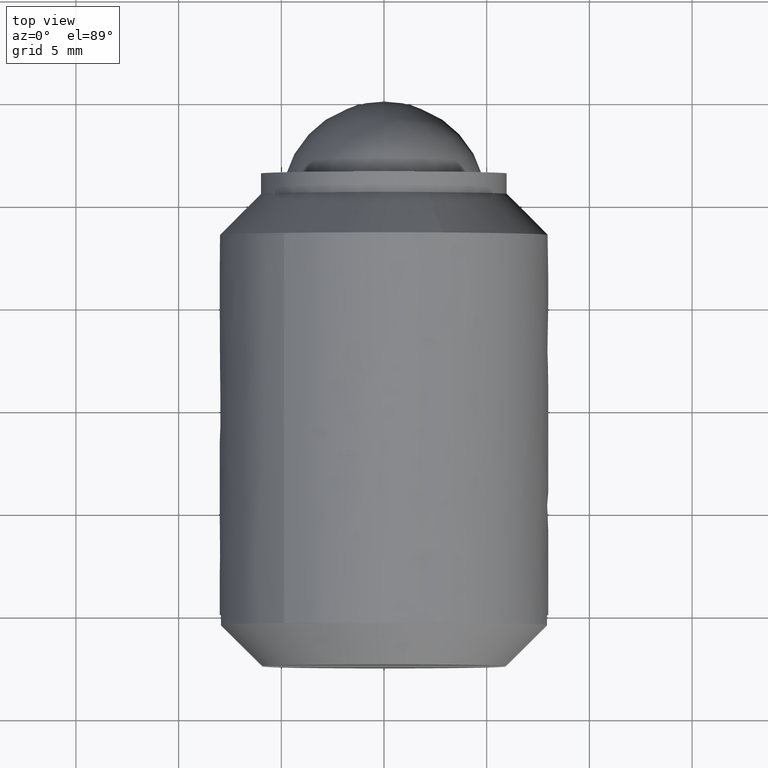
[diagram: clean part render]
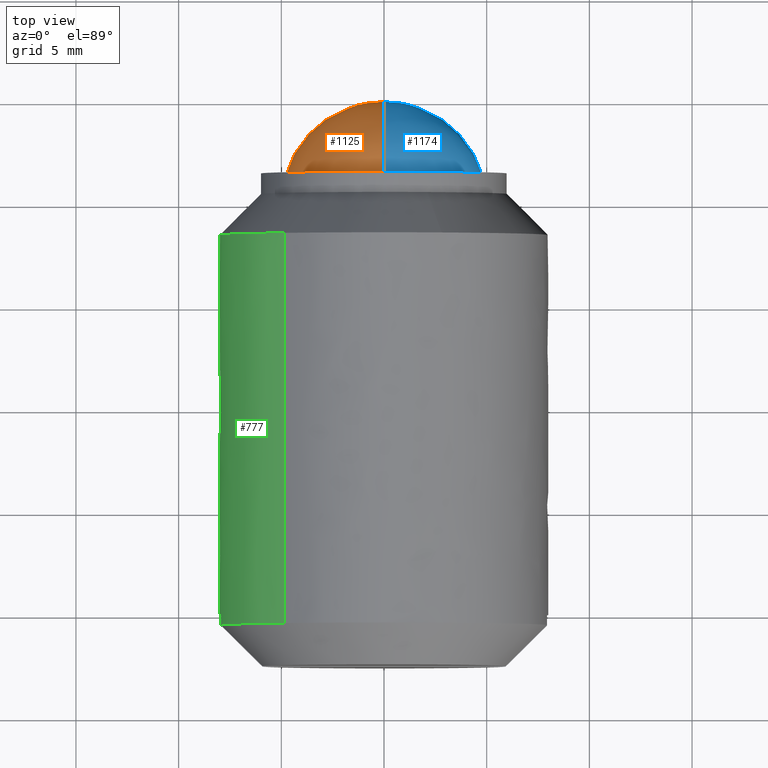
[diagram: same view with three faces highlighted in distinct colors, each labeled with its STEP entity id]
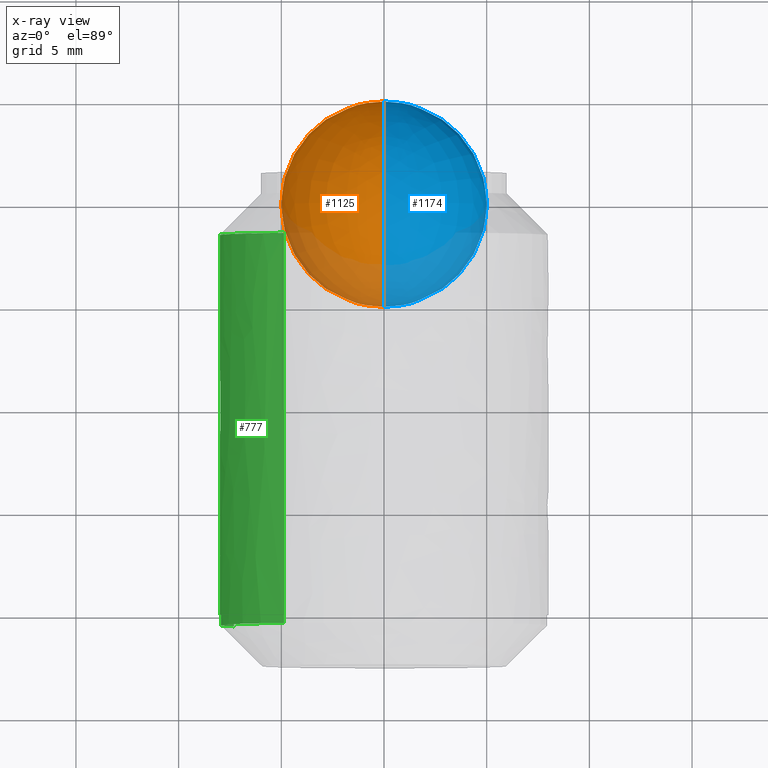
[diagram: x-ray of the same camera — body ghosted, the three highlighted faces saturated]
A machine part, top view with three faces highlighted in distinct colors.
The next image is the same camera in x-ray (body ghosted, the three faces saturated) — at least one of them is partly hidden behind the body in this view.
Their STEP definitions:

[orange] entity #1125 — the highlighted face is a freeform B-spline surface patch.
#1045=CARTESIAN_POINT('',(1.875000000000000,-8.277527650531722,3.277527650531725));
#1046=CARTESIAN_POINT('',(1.226415094339623,-7.968326928783450,3.957769238377932));
#1047=CARTESIAN_POINT('',(0.238095238095238,-6.248581962107323,4.994327848429295));
#1048=CARTESIAN_POINT('',(0.238095238095238,-3.751418037892677,4.994327848429295));
#1049=CARTESIAN_POINT('',(1.226415094339623,-2.031673071216554,3.957769238377932));
#1050=CARTESIAN_POINT('',(1.875000000000000,-1.722472349468278,3.277527650531725));
#1051=CARTESIAN_POINT('',(1.226415094339623,-8.957769238377928,2.968326928783448));
#1052=CARTESIAN_POINT('',(0.238095238095238,-8.745745886321966,3.745745886321970));
#1053=CARTESIAN_POINT('',(-1.451612903225807,-6.691627174467986,5.074881523403960));
#1054=CARTESIAN_POINT('',(-1.451612903225807,-3.308372825532014,5.074881523403960));
#1055=CARTESIAN_POINT('',(0.238095238095238,-1.254254113678031,3.745745886321970));
#1056=CARTESIAN_POINT('',(1.226415094339623,-1.042230761622072,2.968326928783448));
#1057=CARTESIAN_POINT('',(0.238095238095238,-9.994327848429290,1.248581962107325));
#1058=CARTESIAN_POINT('',(-1.451612903225807,-10.074881523403961,1.691627174467988));
#1059=CARTESIAN_POINT('',(-4.999999999999998,-7.622022120425378,2.622022120425380));
#1060=CARTESIAN_POINT('',(-4.999999999999998,-2.377977879574622,2.622022120425380));
#1061=CARTESIAN_POINT('',(-1.451612903225807,0.074881523403958,1.691627174467988));
#1062=CARTESIAN_POINT('',(0.238095238095238,-0.005672151570709,1.248581962107325));
#1063=CARTESIAN_POINT('',(0.238095238095238,-9.994327848429290,-1.248581962107321));
#1064=CARTESIAN_POINT('',(-1.451612903225807,-10.074881523403961,-1.691627174467985));
#1065=CARTESIAN_POINT('',(-4.999999999999998,-7.622022120425378,-2.622022120425377));
#1066=CARTESIAN_POINT('',(-4.999999999999998,-2.377977879574622,-2.622022120425377));
#1067=CARTESIAN_POINT('',(-1.451612903225807,0.074881523403958,-1.691627174467985));
#1068=CARTESIAN_POINT('',(0.238095238095238,-0.005672151570709,-1.248581962107321));
#1069=CARTESIAN_POINT('',(1.226415094339623,-8.957769238377928,-2.968326928783446));
#1070=CARTESIAN_POINT('',(0.238095238095238,-8.745745886321966,-3.745745886321967));
#1071=CARTESIAN_POINT('',(-1.451612903225807,-6.691627174467986,-5.074881523403956));
#1072=CARTESIAN_POINT('',(-1.451612903225807,-3.308372825532014,-5.074881523403956));
#1073=CARTESIAN_POINT('',(0.238095238095238,-1.254254113678031,-3.745745886321967));
#1074=CARTESIAN_POINT('',(1.226415094339623,-1.042230761622072,-2.968326928783446));
#1075=CARTESIAN_POINT('',(1.875000000000000,-8.277527650531722,-3.277527650531722));
#1076=CARTESIAN_POINT('',(1.226415094339623,-7.968326928783450,-3.957769238377928));
#1077=CARTESIAN_POINT('',(0.238095238095238,-6.248581962107323,-4.994327848429291));
#1078=CARTESIAN_POINT('',(0.238095238095238,-3.751418037892677,-4.994327848429291));
#1079=CARTESIAN_POINT('',(1.226415094339623,-2.031673071216554,-3.957769238377928));
#1080=CARTESIAN_POINT('',(1.875000000000000,-1.722472349468278,-3.277527650531722));
#1088=(BOUNDED_SURFACE()B_SPLINE_SURFACE(2,2,((#1045,#1051,#1057,#1063,#1069,#1075),(#1046,#1052,#1058,#1064,#1070,#1076),(#1047,#1053,#1059,#1065,#1071,#1077),(#1048,#1054,#1060,#1066,#1072,#1078),(#1049,#1055,#1061,#1067,#1073,#1079),(#1050,#1056,#1062,#1068,#1074,#1080)),.UNSPECIFIED.,.F.,.F.,.U.)B_SPLINE_SURFACE_WITH_KNOTS((3,1,1,1,3),(3,1,1,1,3),(0.0,4.610148783165501,9.220297566331002,13.830446349496500,18.440595132662001),(0.0,4.610148783165501,9.220297566331002,13.830446349496500,18.440595132662001),.UNSPECIFIED.)GEOMETRIC_REPRESENTATION_ITEM()RATIONAL_B_SPLINE_SURFACE(((3.200000000000000,2.650000000000000,2.100000000000000,2.100000000000000,2.650000000000000,3.200000000000000),(2.650000000000000,2.100000000000000,1.550000000000000,1.550000000000000,2.100000000000000,2.650000000000000),(2.100000000000000,1.550000000000000,1.0,1.0,1.550000000000000,2.100000000000000),(2.100000000000000,1.550000000000000,1.0,1.0,1.550000000000000,2.100000000000000),(2.650000000000000,2.100000000000000,1.550000000000000,1.550000000000000,2.100000000000000,2.650000000000000),(3.200000000000000,2.650000000000000,2.100000000000000,2.100000000000000,2.650000000000000,3.200000000000000)))REPRESENTATION_ITEM('')SURFACE());
#1089=CARTESIAN_POINT('',(0.0,0.0,1.500143E-015));
#1090=VERTEX_POINT('',#1089);
#1091=CARTESIAN_POINT('',(0.0,-10.0,1.500143E-015));
#1092=VERTEX_POINT('',#1091);
#1093=CARTESIAN_POINT('',(0.0,0.0,1.500143E-015));
#1094=CARTESIAN_POINT('',(0.0,0.0,-4.999999999999997));
#1095=CARTESIAN_POINT('',(0.0,-5.0,-4.999999999999998));
#1096=CARTESIAN_POINT('',(0.0,-10.000000000000002,-4.999999999999997));
#1097=CARTESIAN_POINT('',(0.0,-10.0,1.500143E-015));
#1105=(BOUNDED_CURVE()B_SPLINE_CURVE(2,(#1093,#1094,#1095,#1096,#1097),.UNSPECIFIED.,.F.,.U.)B_SPLINE_CURVE_WITH_KNOTS((3,2,3),(0.0,0.500000000000000,1.0),.UNSPECIFIED.)CURVE()GEOMETRIC_REPRESENTATION_ITEM()RATIONAL_B_SPLINE_CURVE((1.0,0.707106781186548,1.0,0.707106781186548,1.0))REPRESENTATION_ITEM(''));
#1106=EDGE_CURVE('',#1090,#1092,#1105,.T.);
#1107=ORIENTED_EDGE('',*,*,#1106,.T.);
#1108=CARTESIAN_POINT('',(0.0,0.0,1.500143E-015));
#1109=CARTESIAN_POINT('',(0.0,0.0,5.000000000000002));
#1110=CARTESIAN_POINT('',(0.0,-5.0,5.000000000000002));
#1111=CARTESIAN_POINT('',(0.0,-10.000000000000002,5.000000000000002));
#1112=CARTESIAN_POINT('',(0.0,-10.0,1.500143E-015));
#1120=(BOUNDED_CURVE()B_SPLINE_CURVE(2,(#1108,#1109,#1110,#1111,#1112),.UNSPECIFIED.,.F.,.U.)B_SPLINE_CURVE_WITH_KNOTS((3,2,3),(0.0,0.500000000000000,1.0),.UNSPECIFIED.)CURVE()GEOMETRIC_REPRESENTATION_ITEM()RATIONAL_B_SPLINE_CURVE((1.0,0.707106781186548,1.0,0.707106781186548,1.0))REPRESENTATION_ITEM(''));
#1121=EDGE_CURVE('',#1090,#1092,#1120,.T.);
#1122=ORIENTED_EDGE('',*,*,#1121,.F.);
#1123=EDGE_LOOP('',(#1107,#1122));
#1124=FACE_OUTER_BOUND('',#1123,.T.);
#1125=ADVANCED_FACE('',(#1124),#1088,.T.);

[blue] entity #1174 — the highlighted face is a freeform B-spline surface patch.
#1089=CARTESIAN_POINT('',(0.0,0.0,1.500143E-015));
#1090=VERTEX_POINT('',#1089);
#1091=CARTESIAN_POINT('',(0.0,-10.0,1.500143E-015));
#1092=VERTEX_POINT('',#1091);
#1093=CARTESIAN_POINT('',(0.0,0.0,1.500143E-015));
#1094=CARTESIAN_POINT('',(0.0,0.0,-4.999999999999997));
#1095=CARTESIAN_POINT('',(0.0,-5.0,-4.999999999999998));
#1096=CARTESIAN_POINT('',(0.0,-10.000000000000002,-4.999999999999997));
#1097=CARTESIAN_POINT('',(0.0,-10.0,1.500143E-015));
#1105=(BOUNDED_CURVE()B_SPLINE_CURVE(2,(#1093,#1094,#1095,#1096,#1097),.UNSPECIFIED.,.F.,.U.)B_SPLINE_CURVE_WITH_KNOTS((3,2,3),(0.0,0.500000000000000,1.0),.UNSPECIFIED.)CURVE()GEOMETRIC_REPRESENTATION_ITEM()RATIONAL_B_SPLINE_CURVE((1.0,0.707106781186548,1.0,0.707106781186548,1.0))REPRESENTATION_ITEM(''));
#1106=EDGE_CURVE('',#1090,#1092,#1105,.T.);
#1108=CARTESIAN_POINT('',(0.0,0.0,1.500143E-015));
#1109=CARTESIAN_POINT('',(0.0,0.0,5.000000000000002));
#1110=CARTESIAN_POINT('',(0.0,-5.0,5.000000000000002));
#1111=CARTESIAN_POINT('',(0.0,-10.000000000000002,5.000000000000002));
#1112=CARTESIAN_POINT('',(0.0,-10.0,1.500143E-015));
#1120=(BOUNDED_CURVE()B_SPLINE_CURVE(2,(#1108,#1109,#1110,#1111,#1112),.UNSPECIFIED.,.F.,.U.)B_SPLINE_CURVE_WITH_KNOTS((3,2,3),(0.0,0.500000000000000,1.0),.UNSPECIFIED.)CURVE()GEOMETRIC_REPRESENTATION_ITEM()RATIONAL_B_SPLINE_CURVE((1.0,0.707106781186548,1.0,0.707106781186548,1.0))REPRESENTATION_ITEM(''));
#1121=EDGE_CURVE('',#1090,#1092,#1120,.T.);
#1126=CARTESIAN_POINT('',(-1.875000000000000,-8.277527650531722,-3.277527650531722));
#1127=CARTESIAN_POINT('',(-1.226415094339623,-7.968326928783450,-3.957769238377928));
#1128=CARTESIAN_POINT('',(-0.238095238095238,-6.248581962107323,-4.994327848429291));
#1129=CARTESIAN_POINT('',(-0.238095238095238,-3.751418037892677,-4.994327848429291));
#1130=CARTESIAN_POINT('',(-1.226415094339623,-2.031673071216554,-3.957769238377928));
#1131=CARTESIAN_POINT('',(-1.875000000000000,-1.722472349468278,-3.277527650531722));
#1132=CARTESIAN_POINT('',(-1.226415094339623,-8.957769238377928,-2.968326928783446));
#1133=CARTESIAN_POINT('',(-0.238095238095238,-8.745745886321966,-3.745745886321967));
#1134=CARTESIAN_POINT('',(1.451612903225807,-6.691627174467986,-5.074881523403956));
#1135=CARTESIAN_POINT('',(1.451612903225807,-3.308372825532014,-5.074881523403956));
#1136=CARTESIAN_POINT('',(-0.238095238095238,-1.254254113678031,-3.745745886321967));
#1137=CARTESIAN_POINT('',(-1.226415094339623,-1.042230761622072,-2.968326928783446));
#1138=CARTESIAN_POINT('',(-0.238095238095238,-9.994327848429290,-1.248581962107321));
#1139=CARTESIAN_POINT('',(1.451612903225807,-10.074881523403961,-1.691627174467985));
#1140=CARTESIAN_POINT('',(4.999999999999998,-7.622022120425378,-2.622022120425377));
#1141=CARTESIAN_POINT('',(4.999999999999998,-2.377977879574622,-2.622022120425377));
#1142=CARTESIAN_POINT('',(1.451612903225807,0.074881523403958,-1.691627174467985));
#1143=CARTESIAN_POINT('',(-0.238095238095238,-0.005672151570709,-1.248581962107321));
#1144=CARTESIAN_POINT('',(-0.238095238095238,-9.994327848429290,1.248581962107325));
#1145=CARTESIAN_POINT('',(1.451612903225807,-10.074881523403961,1.691627174467988));
#1146=CARTESIAN_POINT('',(4.999999999999998,-7.622022120425378,2.622022120425380));
#1147=CARTESIAN_POINT('',(4.999999999999998,-2.377977879574622,2.622022120425380));
#1148=CARTESIAN_POINT('',(1.451612903225807,0.074881523403958,1.691627174467988));
#1149=CARTESIAN_POINT('',(-0.238095238095238,-0.005672151570709,1.248581962107325));
#1150=CARTESIAN_POINT('',(-1.226415094339623,-8.957769238377928,2.968326928783448));
#1151=CARTESIAN_POINT('',(-0.238095238095238,-8.745745886321966,3.745745886321970));
#1152=CARTESIAN_POINT('',(1.451612903225807,-6.691627174467986,5.074881523403960));
#1153=CARTESIAN_POINT('',(1.451612903225807,-3.308372825532014,5.074881523403960));
#1154=CARTESIAN_POINT('',(-0.238095238095238,-1.254254113678031,3.745745886321970));
#1155=CARTESIAN_POINT('',(-1.226415094339623,-1.042230761622072,2.968326928783448));
#1156=CARTESIAN_POINT('',(-1.875000000000000,-8.277527650531722,3.277527650531725));
#1157=CARTESIAN_POINT('',(-1.226415094339623,-7.968326928783450,3.957769238377932));
#1158=CARTESIAN_POINT('',(-0.238095238095238,-6.248581962107323,4.994327848429295));
#1159=CARTESIAN_POINT('',(-0.238095238095238,-3.751418037892677,4.994327848429295));
#1160=CARTESIAN_POINT('',(-1.226415094339623,-2.031673071216554,3.957769238377932));
#1161=CARTESIAN_POINT('',(-1.875000000000000,-1.722472349468278,3.277527650531725));
#1169=(BOUNDED_SURFACE()B_SPLINE_SURFACE(2,2,((#1126,#1132,#1138,#1144,#1150,#1156),(#1127,#1133,#1139,#1145,#1151,#1157),(#1128,#1134,#1140,#1146,#1152,#1158),(#1129,#1135,#1141,#1147,#1153,#1159),(#1130,#1136,#1142,#1148,#1154,#1160),(#1131,#1137,#1143,#1149,#1155,#1161)),.UNSPECIFIED.,.F.,.F.,.U.)B_SPLINE_SURFACE_WITH_KNOTS((3,1,1,1,3),(3,1,1,1,3),(0.0,4.610148783165501,9.220297566331002,13.830446349496500,18.440595132662001),(0.0,4.610148783165501,9.220297566331002,13.830446349496500,18.440595132662001),.UNSPECIFIED.)GEOMETRIC_REPRESENTATION_ITEM()RATIONAL_B_SPLINE_SURFACE(((3.200000000000000,2.650000000000000,2.100000000000000,2.100000000000000,2.650000000000000,3.200000000000000),(2.650000000000000,2.100000000000000,1.550000000000000,1.550000000000000,2.100000000000000,2.650000000000000),(2.100000000000000,1.550000000000000,1.0,1.0,1.550000000000000,2.100000000000000),(2.100000000000000,1.550000000000000,1.0,1.0,1.550000000000000,2.100000000000000),(2.650000000000000,2.100000000000000,1.550000000000000,1.550000000000000,2.100000000000000,2.650000000000000),(3.200000000000000,2.650000000000000,2.100000000000000,2.100000000000000,2.650000000000000,3.200000000000000)))REPRESENTATION_ITEM('')SURFACE());
#1170=ORIENTED_EDGE('',*,*,#1121,.T.);
#1171=ORIENTED_EDGE('',*,*,#1106,.F.);
#1172=EDGE_LOOP('',(#1170,#1171));
#1173=FACE_OUTER_BOUND('',#1172,.T.);
#1174=ADVANCED_FACE('',(#1173),#1169,.T.);

[green] entity #777 — the highlighted face is a freeform B-spline surface patch.
#284=CARTESIAN_POINT('',(-7.985078387376499,-6.500000000002911,0.488388316301027));
#285=VERTEX_POINT('',#284);
#291=CARTESIAN_POINT('',(-4.870091037611219,-6.500000000000000,6.346827025008528));
#292=VERTEX_POINT('',#291);
#293=CARTESIAN_POINT('',(-4.870091037611219,-6.500000000000000,6.346827025008528));
#294=CARTESIAN_POINT('',(-7.762506972072580,-6.500000000000001,4.127398789254261));
#295=CARTESIAN_POINT('',(-7.985078387376499,-6.500000000002911,0.488388316301027));
#303=(BOUNDED_CURVE()B_SPLINE_CURVE(2,(#293,#294,#295),.UNSPECIFIED.,.F.,.U.)B_SPLINE_CURVE_WITH_KNOTS((3,3),(0.605220491557171,0.739332962241018),.UNSPECIFIED.)CURVE()GEOMETRIC_REPRESENTATION_ITEM()RATIONAL_B_SPLINE_CURVE((0.857220216439686,0.832357764713392,0.976072041671164))REPRESENTATION_ITEM(''));
#304=EDGE_CURVE('',#292,#285,#303,.T.);
#401=CARTESIAN_POINT('',(-7.310556275005265,-6.500000000000000,-3.248963981022425));
#402=VERTEX_POINT('',#401);
#416=CARTESIAN_POINT('',(-7.985078387376499,-6.500000000002911,0.488388316301027));
#417=CARTESIAN_POINT('',(-8.0,-6.500000000000000,0.244422106410766));
#418=CARTESIAN_POINT('',(-8.0,-6.500000000000000,-1.806294E-015));
#419=CARTESIAN_POINT('',(-8.0,-6.500000000000001,-1.697633287639437));
#420=CARTESIAN_POINT('',(-7.310556275005265,-6.500000000000000,-3.248963981022425));
#428=(BOUNDED_CURVE()B_SPLINE_CURVE(2,(#416,#417,#418,#419,#420),.UNSPECIFIED.,.F.,.U.)B_SPLINE_CURVE_WITH_KNOTS((3,2,3),(0.739332962241018,0.750000000000000,0.818963736983760),.UNSPECIFIED.)CURVE()GEOMETRIC_REPRESENTATION_ITEM()RATIONAL_B_SPLINE_CURVE((0.976072041671165,0.987502787902268,1.0,0.919203956373688,0.882983889563164))REPRESENTATION_ITEM(''));
#429=EDGE_CURVE('',#285,#402,#428,.T.);
#622=CARTESIAN_POINT('',(-4.870091377275460,-25.500000000000000,6.346826764375027));
#623=VERTEX_POINT('',#622);
#624=CARTESIAN_POINT('',(-4.870091037611219,-6.500000000000000,6.346827025008528));
#625=CARTESIAN_POINT('',(-4.870091377275460,-25.500000000000000,6.346826764375027));
#626=QUASI_UNIFORM_CURVE('',1,(#624,#625),.UNSPECIFIED.,.F.,.U.);
#627=EDGE_CURVE('',#292,#623,#626,.T.);
#675=CARTESIAN_POINT('',(-7.310557780470655,-25.500000000000000,-3.248960593541331));
#676=VERTEX_POINT('',#675);
#692=CARTESIAN_POINT('',(-7.310556275005265,-6.500000000000000,-3.248963981022425));
#693=CARTESIAN_POINT('',(-7.310557780470655,-25.500000000000000,-3.248960593541331));
#694=QUASI_UNIFORM_CURVE('',1,(#692,#693),.UNSPECIFIED.,.F.,.U.);
#695=EDGE_CURVE('',#402,#676,#694,.T.);
#700=CARTESIAN_POINT('',(-4.870091432069762,-6.024999999999999,6.346826722329879));
#701=CARTESIAN_POINT('',(-9.870057291562189,-6.025000000000000,2.510217979367925));
#702=CARTESIAN_POINT('',(-7.310556180406904,-6.024999999999999,-3.248964193880011));
#703=CARTESIAN_POINT('',(-4.870091432069762,-25.986875000000001,6.346826722329879));
#704=CARTESIAN_POINT('',(-9.870057291562189,-25.986875000000005,2.510217979367925));
#705=CARTESIAN_POINT('',(-7.310556180406904,-25.986875000000001,-3.248964193880011));
#713=(BOUNDED_SURFACE()B_SPLINE_SURFACE(2,1,((#700,#703),(#701,#704),(#702,#705)),.UNSPECIFIED.,.F.,.F.,.U.)B_SPLINE_SURFACE_WITH_KNOTS((3,3),(2,2),(0.0,11.085370664284779),(0.0,19.961874999999999),.UNSPECIFIED.)GEOMETRIC_REPRESENTATION_ITEM()RATIONAL_B_SPLINE_SURFACE(((1.0,1.0),(0.753969696196700,0.753969696196700),(0.921270302782944,0.921270302782944)))REPRESENTATION_ITEM('')SURFACE());
#714=ORIENTED_EDGE('',*,*,#304,.T.);
#715=ORIENTED_EDGE('',*,*,#429,.T.);
#716=ORIENTED_EDGE('',*,*,#695,.T.);
#717=CARTESIAN_POINT('',(-7.937253933193770,-25.500000000000000,-1.0));
#718=VERTEX_POINT('',#717);
#719=CARTESIAN_POINT('',(-7.937253933193772,-25.500000000000000,-1.000000000000001));
#720=CARTESIAN_POINT('',(-7.789759942857692,-25.500000000000004,-2.170697254917499));
#721=CARTESIAN_POINT('',(-7.310557780470655,-25.500000000000000,-3.248960593541332));
#729=(BOUNDED_CURVE()B_SPLINE_CURVE(2,(#719,#720,#721),.UNSPECIFIED.,.F.,.U.)B_SPLINE_CURVE_WITH_KNOTS((3,3),(0.0,0.105607617248739),.UNSPECIFIED.)CURVE()GEOMETRIC_REPRESENTATION_ITEM()RATIONAL_B_SPLINE_CURVE((1.0,0.947196191375630,0.916698320393173))REPRESENTATION_ITEM(''));
#730=EDGE_CURVE('',#718,#676,#729,.T.);
#731=ORIENTED_EDGE('',*,*,#730,.F.);
#732=CARTESIAN_POINT('',(-7.937253933193770,-25.0,-1.0));
#733=VERTEX_POINT('',#732);
#734=CARTESIAN_POINT('',(-7.937253933193770,-25.0,-1.0));
#735=CARTESIAN_POINT('',(-7.937253933193770,-25.500000000000000,-1.0));
#736=QUASI_UNIFORM_CURVE('',1,(#734,#735),.UNSPECIFIED.,.F.,.U.);
#737=EDGE_CURVE('',#733,#718,#736,.T.);
#738=ORIENTED_EDGE('',*,*,#737,.F.);
#739=CARTESIAN_POINT('',(-7.937253933193770,-25.0,1.0));
#740=VERTEX_POINT('',#739);
#741=CARTESIAN_POINT('',(-7.937253933193772,-25.0,1.000000000000001));
#742=CARTESIAN_POINT('',(-8.063242090863515,-24.999999999999996,1.084202E-015));
#743=CARTESIAN_POINT('',(-7.937253933193772,-25.0,-1.000000000000000));
#751=(BOUNDED_CURVE()B_SPLINE_CURVE(2,(#741,#742,#743),.UNSPECIFIED.,.F.,.U.)CURVE()GEOMETRIC_REPRESENTATION_ITEM()QUASI_UNIFORM_CURVE()RATIONAL_B_SPLINE_CURVE((1.0,0.992156741649221,1.0))REPRESENTATION_ITEM(''));
#752=EDGE_CURVE('',#740,#733,#751,.T.);
#753=ORIENTED_EDGE('',*,*,#752,.F.);
#754=CARTESIAN_POINT('',(-7.937253933193770,-25.500000000000000,1.0));
#755=VERTEX_POINT('',#754);
#756=CARTESIAN_POINT('',(-7.937253933193770,-25.0,1.0));
#757=CARTESIAN_POINT('',(-7.937253933193770,-25.500000000000000,1.0));
#758=QUASI_UNIFORM_CURVE('',1,(#756,#757),.UNSPECIFIED.,.F.,.U.);
#759=EDGE_CURVE('',#740,#755,#758,.T.);
#760=ORIENTED_EDGE('',*,*,#759,.T.);
#761=CARTESIAN_POINT('',(-4.870091377275460,-25.500000000000004,6.346826764375028));
#762=CARTESIAN_POINT('',(-7.519772659777563,-25.500000000000007,4.313654879457524));
#763=CARTESIAN_POINT('',(-7.937253933193772,-25.500000000000000,1.0));
#771=(BOUNDED_CURVE()B_SPLINE_CURVE(2,(#761,#762,#763),.UNSPECIFIED.,.F.,.U.)B_SPLINE_CURVE_WITH_KNOTS((3,3),(0.727424371635832,1.0),.UNSPECIFIED.)CURVE()GEOMETRIC_REPRESENTATION_ITEM()RATIONAL_B_SPLINE_CURVE((0.876019317906473,0.863712185723817,1.0))REPRESENTATION_ITEM(''));
#772=EDGE_CURVE('',#623,#755,#771,.T.);
#773=ORIENTED_EDGE('',*,*,#772,.F.);
#774=ORIENTED_EDGE('',*,*,#627,.F.);
#775=EDGE_LOOP('',(#714,#715,#716,#731,#738,#753,#760,#773,#774));
#776=FACE_OUTER_BOUND('',#775,.T.);
#777=ADVANCED_FACE('',(#776),#713,.T.);